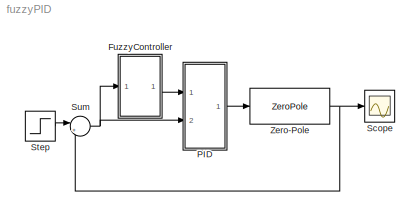
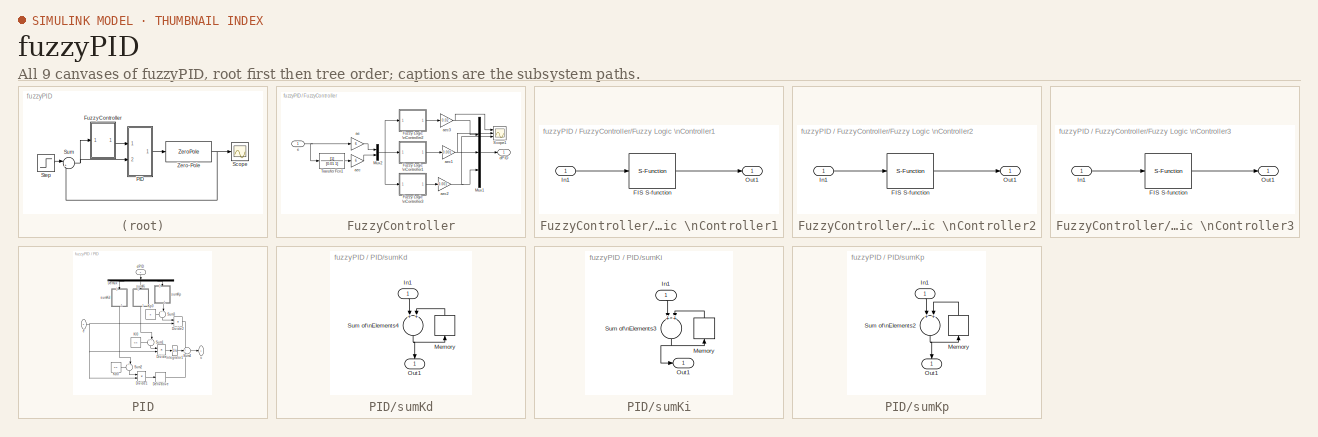
[diagram: thumbnail index - all 9 canvases of the model, root first then tree order]
MODEL fuzzyPID
KIND model
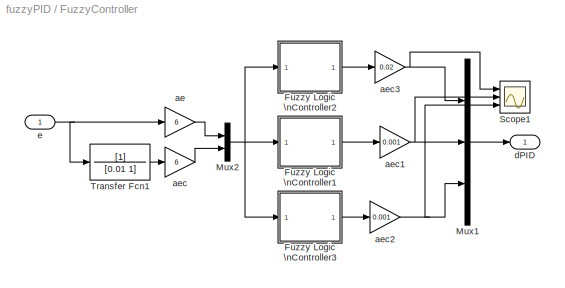
BLOCK [SubSystem] FuzzyController
  FunctionWithSeparateData = off
  MinAlgLoopOccurrences = off
  Ports = [1, 1]
  RTWSystemCode = Auto
BLOCK [SubSystem] FuzzyController/Fuzzy Logic \nController1
  AncestorBlock = fuzblock/Fuzzy Logic \nController
  FunctionWithSeparateData = off
  MaskDescription = FIS
  MaskDisplay = plot(0, -0.3, 6, -0.3, 0, 1.2, 6, 1.2, [0 6], [0 0], [1 2 3],[0 1 0],[2 3 4],[0 1 0],[3 4 5],[0 1 0])
  MaskEnableString = on
  MaskHelp = web(['file:///' docroot '/toolbox/fuzzy/fuzzylogiccontroller.html']);
  MaskIconFrame = on
  MaskIconOpaque = on
  MaskIconRotate = none
  MaskIconUnits = autoscale
  MaskInitialization = fis = fuzblockmask(gcb,fis);
  MaskPromptString = FIS File or Structure:
  MaskSelfModifiable = on
  MaskStyleString = edit
  MaskToolTipString = on
  MaskTunableValueString = on
  MaskType = FIS
  MaskValueString = dki
  MaskVariables = fis=@1;
  MaskVisibilityString = on
  MinAlgLoopOccurrences = off
  Ports = [1, 1]
  RTWSystemCode = Auto
BLOCK [S-Function] FuzzyController/Fuzzy Logic \nController1/FIS S-function
  FunctionName = sffis
  Parameters = fis
  Ports = [1, 1]
  SFunctionModules = sfsup
BLOCK [Inport] FuzzyController/Fuzzy Logic \nController1/In1
  IconDisplay = Port number
  OutDataType = sfix(16)
  OutScaling = 2^0
BLOCK [Outport] FuzzyController/Fuzzy Logic \nController1/Out1
  IconDisplay = Port number
  OutDataType = sfix(16)
  OutScaling = 2^0
BLOCK [SubSystem] FuzzyController/Fuzzy Logic \nController2
  AncestorBlock = fuzblock/Fuzzy Logic \nController
  FunctionWithSeparateData = off
  MaskDescription = FIS
  MaskDisplay = plot(0, -0.3, 6, -0.3, 0, 1.2, 6, 1.2, [0 6], [0 0], [1 2 3],[0 1 0],[2 3 4],[0 1 0],[3 4 5],[0 1 0])
  MaskEnableString = on
  MaskHelp = web(['file:///' docroot '/toolbox/fuzzy/fuzzylogiccontroller.html']);
  MaskIconFrame = on
  MaskIconOpaque = on
  MaskIconRotate = none
  MaskIconUnits = autoscale
  MaskInitialization = fis = fuzblockmask(gcb,fis);
  MaskPromptString = FIS File or Structure:
  MaskSelfModifiable = on
  MaskStyleString = edit
  MaskToolTipString = on
  MaskTunableValueString = on
  MaskType = FIS
  MaskValueString = dkp
  MaskVariables = fis=@1;
  MaskVisibilityString = on
  MinAlgLoopOccurrences = off
  Ports = [1, 1]
  RTWSystemCode = Auto
BLOCK [S-Function] FuzzyController/Fuzzy Logic \nController2/FIS S-function
  FunctionName = sffis
  Parameters = fis
  Ports = [1, 1]
  SFunctionModules = sfsup
BLOCK [Inport] FuzzyController/Fuzzy Logic \nController2/In1
  IconDisplay = Port number
  OutDataType = sfix(16)
  OutScaling = 2^0
BLOCK [Outport] FuzzyController/Fuzzy Logic \nController2/Out1
  IconDisplay = Port number
  OutDataType = sfix(16)
  OutScaling = 2^0
BLOCK [SubSystem] FuzzyController/Fuzzy Logic \nController3
  AncestorBlock = fuzblock/Fuzzy Logic \nController
  FunctionWithSeparateData = off
  MaskDescription = FIS
  MaskDisplay = plot(0, -0.3, 6, -0.3, 0, 1.2, 6, 1.2, [0 6], [0 0], [1 2 3],[0 1 0],[2 3 4],[0 1 0],[3 4 5],[0 1 0])
  MaskEnableString = on
  MaskHelp = web(['file:///' docroot '/toolbox/fuzzy/fuzzylogiccontroller.html']);
  MaskIconFrame = on
  MaskIconOpaque = on
  MaskIconRotate = none
  MaskIconUnits = autoscale
  MaskInitialization = fis = fuzblockmask(gcb,fis);
  MaskPromptString = FIS File or Structure:
  MaskSelfModifiable = on
  MaskStyleString = edit
  MaskToolTipString = on
  MaskTunableValueString = on
  MaskType = FIS
  MaskValueString = dkd
  MaskVariables = fis=@1;
  MaskVisibilityString = on
  MinAlgLoopOccurrences = off
  Ports = [1, 1]
  RTWSystemCode = Auto
BLOCK [S-Function] FuzzyController/Fuzzy Logic \nController3/FIS S-function
  FunctionName = sffis
  Parameters = fis
  Ports = [1, 1]
  SFunctionModules = sfsup
BLOCK [Inport] FuzzyController/Fuzzy Logic \nController3/In1
  IconDisplay = Port number
  OutDataType = sfix(16)
  OutScaling = 2^0
BLOCK [Outport] FuzzyController/Fuzzy Logic \nController3/Out1
  IconDisplay = Port number
  OutDataType = sfix(16)
  OutScaling = 2^0
BLOCK [Mux] FuzzyController/Mux1
  DisplayOption = bar
  Inputs = 3
  Ports = [3, 1]
BLOCK [Mux] FuzzyController/Mux2
  DisplayOption = bar
  Inputs = 2
  Ports = [2, 1]
BLOCK [Scope] FuzzyController/Scope1
  DataFormat = StructureWithTime
  Floating = off
  LimitDataPoints = off
  NumInputPorts = 3
  Ports = [3]
  SampleTime = 0
  SaveName = ScopeData1
  TimeRange = 10
  YMax = 1~5~5
  YMin = 0.975~-5~-5
  ZoomMode = xonly
BLOCK [TransferFcn] FuzzyController/Transfer Fcn1
  Denominator = [0.01 1]
BLOCK [Gain] FuzzyController/ae
  Gain = 6
  OutDataType = sfix(16)
  OutDataTypeMode = Inherit via internal rule
  OutScaling = 2^0
  ParameterDataType = sfix(16)
  ParameterDataTypeMode = Inherit via internal rule
  ParameterScaling = 2^0
  SaturateOnIntegerOverflow = off
BLOCK [Gain] FuzzyController/aec
  Gain = 6
  OutDataType = sfix(16)
  OutDataTypeMode = Inherit via internal rule
  OutScaling = 2^0
  ParameterDataType = sfix(16)
  ParameterDataTypeMode = Inherit via internal rule
  ParameterScaling = 2^0
  SaturateOnIntegerOverflow = off
BLOCK [Gain] FuzzyController/aec1
  Gain = 0.001
  OutDataType = sfix(16)
  OutDataTypeMode = Inherit via internal rule
  OutScaling = 2^0
  ParameterDataType = sfix(16)
  ParameterDataTypeMode = Inherit via internal rule
  ParameterScaling = 2^0
  SaturateOnIntegerOverflow = off
BLOCK [Gain] FuzzyController/aec2
  Gain = 0.001
  OutDataType = sfix(16)
  OutDataTypeMode = Inherit via internal rule
  OutScaling = 2^0
  ParameterDataType = sfix(16)
  ParameterDataTypeMode = Inherit via internal rule
  ParameterScaling = 2^0
  SaturateOnIntegerOverflow = off
BLOCK [Gain] FuzzyController/aec3
  Gain = 0.02
  OutDataType = sfix(16)
  OutDataTypeMode = Inherit via internal rule
  OutScaling = 2^0
  ParameterDataType = sfix(16)
  ParameterDataTypeMode = Inherit via internal rule
  ParameterScaling = 2^0
  SaturateOnIntegerOverflow = off
BLOCK [Outport] FuzzyController/dPID
  IconDisplay = Port number
BLOCK [Inport] FuzzyController/e
  IconDisplay = Port number
  OutDataType = sfix(16)
  OutScaling = 2^0
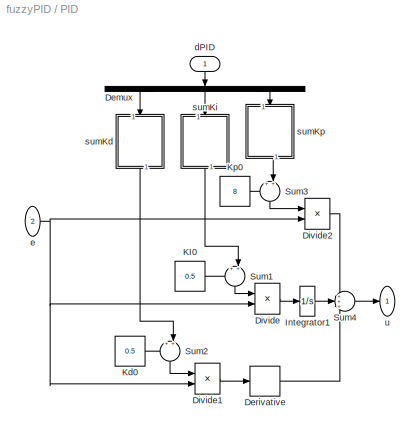
BLOCK [SubSystem] PID
  FunctionWithSeparateData = off
  MinAlgLoopOccurrences = off
  Ports = [2, 1]
  RTWSystemCode = Auto
BLOCK [Demux] PID/Demux
  DisplayOption = bar
  Outputs = 3
  Ports = [1, 3]
BLOCK [Derivative] PID/Derivative
BLOCK [Product] PID/Divide
  CollapseMode = All dimensions
  InputSameDT = off
  Inputs = **
  OutDataType = sfix(16)
  OutDataTypeMode = Inherit via internal rule
  OutScaling = 2^-10
  Ports = [2, 1]
  RndMeth = Floor
  SaturateOnIntegerOverflow = off
BLOCK [Product] PID/Divide1
  CollapseMode = All dimensions
  InputSameDT = off
  Inputs = **
  OutDataType = sfix(16)
  OutDataTypeMode = Inherit via internal rule
  OutScaling = 2^-10
  Ports = [2, 1]
  RndMeth = Floor
  SaturateOnIntegerOverflow = off
BLOCK [Product] PID/Divide2
  CollapseMode = All dimensions
  InputSameDT = off
  Inputs = **
  OutDataType = sfix(16)
  OutDataTypeMode = Inherit via internal rule
  OutScaling = 2^-10
  Ports = [2, 1]
  RndMeth = Floor
  SaturateOnIntegerOverflow = off
BLOCK [Integrator] PID/Integrator1
  Ports = [1, 1]
BLOCK [Constant] PID/KI0
  OutDataType = sfix(16)
  OutScaling = 2^0
  Value = 0.5
BLOCK [Constant] PID/Kd0
  OutDataType = sfix(16)
  OutScaling = 2^0
  Value = 0.5
BLOCK [Constant] PID/Kp0
  OutDataType = sfix(16)
  OutScaling = 2^0
  Value = 8
BLOCK [Sum] PID/Sum1
  CollapseMode = All dimensions
  IconShape = round
  InputSameDT = off
  Inputs = ++|
  OutDataType = sfix(16)
  OutDataTypeMode = Inherit via internal rule
  OutScaling = 2^0
  Ports = [2, 1]
  SaturateOnIntegerOverflow = off
BLOCK [Sum] PID/Sum2
  CollapseMode = All dimensions
  IconShape = round
  InputSameDT = off
  Inputs = ++|
  OutDataType = sfix(16)
  OutDataTypeMode = Inherit via internal rule
  OutScaling = 2^0
  Ports = [2, 1]
  SaturateOnIntegerOverflow = off
BLOCK [Sum] PID/Sum3
  CollapseMode = All dimensions
  IconShape = round
  InputSameDT = off
  Inputs = ++|
  OutDataType = sfix(16)
  OutDataTypeMode = Inherit via internal rule
  OutScaling = 2^0
  Ports = [2, 1]
  SaturateOnIntegerOverflow = off
BLOCK [Sum] PID/Sum4
  CollapseMode = All dimensions
  IconShape = round
  InputSameDT = off
  Inputs = +++
  OutDataType = sfix(16)
  OutDataTypeMode = Inherit via internal rule
  OutScaling = 2^0
  Ports = [3, 1]
  SaturateOnIntegerOverflow = off
BLOCK [Inport] PID/dPID
  IconDisplay = Port number
BLOCK [Inport] PID/e
  IconDisplay = Port number
  Port = 2
BLOCK [SubSystem] PID/sumKd
  FunctionWithSeparateData = off
  MinAlgLoopOccurrences = off
  Ports = [1, 1]
  RTWSystemCode = Auto
BLOCK [Inport] PID/sumKd/In1
  IconDisplay = Port number
BLOCK [Memory] PID/sumKd/Memory
  InheritSampleTime = on
BLOCK [Outport] PID/sumKd/Out1
  IconDisplay = Port number
BLOCK [Sum] PID/sumKd/Sum of\nElements4
  CollapseMode = All dimensions
  InputSameDT = off
  OutDataType = sfix(16)
  OutDataTypeMode = Inherit via internal rule
  OutScaling = 2^-10
  Ports = [2, 1]
  SampleTime = 0.001
  SaturateOnIntegerOverflow = off
BLOCK [SubSystem] PID/sumKi
  FunctionWithSeparateData = off
  MinAlgLoopOccurrences = off
  Ports = [1, 1]
  RTWSystemCode = Auto
BLOCK [Inport] PID/sumKi/In1
  IconDisplay = Port number
BLOCK [Memory] PID/sumKi/Memory
  InheritSampleTime = on
BLOCK [Outport] PID/sumKi/Out1
  IconDisplay = Port number
BLOCK [Sum] PID/sumKi/Sum of\nElements3
  CollapseMode = All dimensions
  InputSameDT = off
  OutDataType = sfix(16)
  OutDataTypeMode = Inherit via internal rule
  OutScaling = 2^-10
  Ports = [2, 1]
  SampleTime = 0.001
  SaturateOnIntegerOverflow = off
BLOCK [SubSystem] PID/sumKp
  FunctionWithSeparateData = off
  MinAlgLoopOccurrences = off
  Ports = [1, 1]
  RTWSystemCode = Auto
BLOCK [Inport] PID/sumKp/In1
  IconDisplay = Port number
BLOCK [Memory] PID/sumKp/Memory
  InheritSampleTime = on
BLOCK [Outport] PID/sumKp/Out1
  IconDisplay = Port number
BLOCK [Sum] PID/sumKp/Sum of\nElements2
  CollapseMode = All dimensions
  InputSameDT = off
  OutDataType = sfix(16)
  OutDataTypeMode = Inherit via internal rule
  OutScaling = 2^-10
  Ports = [2, 1]
  SampleTime = 0.001
  SaturateOnIntegerOverflow = off
BLOCK [Outport] PID/u
  IconDisplay = Port number
  OutDataType = sfix(16)
  OutScaling = 2^0
BLOCK [Scope] Scope
  DataFormat = StructureWithTime
  Floating = off
  LimitDataPoints = off
  NumInputPorts = 1
  Ports = [1]
  SampleTime = 0
  TimeRange = 50
  YMax = 1.1
  YMin = 0.5
  ZoomMode = yonly
BLOCK [Step] Step
  SampleTime = 0
  Time = 0
BLOCK [Sum] Sum
  CollapseMode = All dimensions
  IconShape = round
  InputSameDT = off
  Inputs = |+-
  OutDataType = sfix(16)
  OutDataTypeMode = Inherit via internal rule
  OutScaling = 2^0
  Ports = [2, 1]
  SaturateOnIntegerOverflow = off
BLOCK [ZeroPole] Zero-Pole
  Gain = [10]
  Poles = [-1 -1 -1]
  Zeros = [-0.5]
LINE FuzzyController/Fuzzy Logic \nController1/FIS S-function:1 -> FuzzyController/Fuzzy Logic \nController1/Out1:1
LINE FuzzyController/Fuzzy Logic \nController1/In1:1 -> FuzzyController/Fuzzy Logic \nController1/FIS S-function:1
LINE FuzzyController/Fuzzy Logic \nController1:1 -> FuzzyController/aec1:1
LINE FuzzyController/Fuzzy Logic \nController2/FIS S-function:1 -> FuzzyController/Fuzzy Logic \nController2/Out1:1
LINE FuzzyController/Fuzzy Logic \nController2/In1:1 -> FuzzyController/Fuzzy Logic \nController2/FIS S-function:1
LINE FuzzyController/Fuzzy Logic \nController2:1 -> FuzzyController/aec3:1
LINE FuzzyController/Fuzzy Logic \nController3/FIS S-function:1 -> FuzzyController/Fuzzy Logic \nController3/Out1:1
LINE FuzzyController/Fuzzy Logic \nController3/In1:1 -> FuzzyController/Fuzzy Logic \nController3/FIS S-function:1
LINE FuzzyController/Fuzzy Logic \nController3:1 -> FuzzyController/aec2:1
LINE FuzzyController/Mux1:1 -> FuzzyController/dPID:1
NET FuzzyController/Mux2:1 -> FuzzyController/Fuzzy Logic \nController1:1, FuzzyController/Fuzzy Logic \nController2:1, FuzzyController/Fuzzy Logic \nController3:1
LINE FuzzyController/Transfer Fcn1:1 -> FuzzyController/aec:1
LINE FuzzyController/ae:1 -> FuzzyController/Mux2:1
NET FuzzyController/aec1:1 -> FuzzyController/Mux1:2, FuzzyController/Scope1:2
NET FuzzyController/aec2:1 -> FuzzyController/Mux1:3, FuzzyController/Scope1:3
NET FuzzyController/aec3:1 -> FuzzyController/Mux1:1, FuzzyController/Scope1:1
LINE FuzzyController/aec:1 -> FuzzyController/Mux2:2
NET FuzzyController/e:1 -> FuzzyController/Transfer Fcn1:1, FuzzyController/ae:1
LINE FuzzyController:1 -> PID:1
LINE PID/Demux:1 -> PID/sumKd:1
LINE PID/Demux:2 -> PID/sumKi:1
LINE PID/Demux:3 -> PID/sumKp:1
LINE PID/Derivative:1 -> PID/Sum4:3
LINE PID/Divide1:1 -> PID/Derivative:1
LINE PID/Divide2:1 -> PID/Sum4:1
LINE PID/Divide:1 -> PID/Integrator1:1
LINE PID/Integrator1:1 -> PID/Sum4:2
LINE PID/KI0:1 -> PID/Sum1:1
LINE PID/Kd0:1 -> PID/Sum2:1
LINE PID/Kp0:1 -> PID/Sum3:1
LINE PID/Sum1:1 -> PID/Divide:1
LINE PID/Sum2:1 -> PID/Divide1:1
LINE PID/Sum3:1 -> PID/Divide2:1
LINE PID/Sum4:1 -> PID/u:1
LINE PID/dPID:1 -> PID/Demux:1
NET PID/e:1 -> PID/Divide1:2, PID/Divide2:2, PID/Divide:2
LINE PID/sumKd/In1:1 -> PID/sumKd/Sum of\nElements4:1
LINE PID/sumKd/Memory:1 -> PID/sumKd/Sum of\nElements4:2
NET PID/sumKd/Sum of\nElements4:1 -> PID/sumKd/Memory:1, PID/sumKd/Out1:1
LINE PID/sumKd:1 -> PID/Sum2:2
LINE PID/sumKi/In1:1 -> PID/sumKi/Sum of\nElements3:1
LINE PID/sumKi/Memory:1 -> PID/sumKi/Sum of\nElements3:2
NET PID/sumKi/Sum of\nElements3:1 -> PID/sumKi/Memory:1, PID/sumKi/Out1:1
LINE PID/sumKi:1 -> PID/Sum1:2
LINE PID/sumKp/In1:1 -> PID/sumKp/Sum of\nElements2:1
LINE PID/sumKp/Memory:1 -> PID/sumKp/Sum of\nElements2:2
NET PID/sumKp/Sum of\nElements2:1 -> PID/sumKp/Memory:1, PID/sumKp/Out1:1
LINE PID/sumKp:1 -> PID/Sum3:2
LINE PID:1 -> Zero-Pole:1
LINE Step:1 -> Sum:1
NET Sum:1 -> FuzzyController:1, PID:2
NET Zero-Pole:1 -> Scope:1, Sum:2
note: NET lines group one-source signal fan-out (src -> all destinations, sorted); 1:1 wires keep LINE
